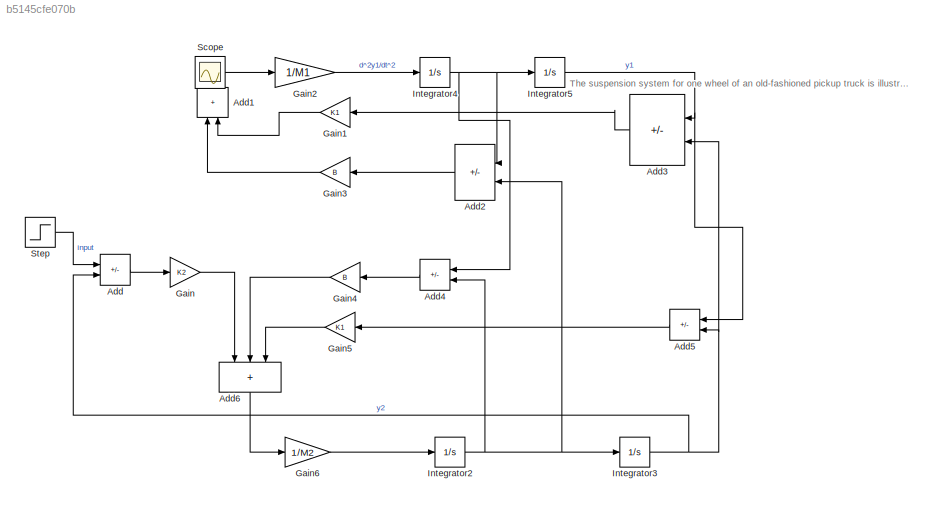
MODEL slx_b5145cfe070b
KIND model
CONFIG AbsTol = auto
CONFIG EnableMultiTasking = off
CONFIG FixedStep = auto
CONFIG MaxStep = auto
CONFIG MinStep = auto
CONFIG RelTol = 1e-3
CONFIG SampleTimeConstraint = Unconstrained
CONFIG Solver = VariableStepAuto
CONFIG SolverName = VariableStepAuto
CONFIG StartTime = 0.0
CONFIG StopTime = 10.0
BLOCK [Sum] Add
  IconShape = rectangular
  Inputs = +-
  Ports = [2, 1]
BLOCK [Sum] Add1
  IconShape = rectangular
  NameLocation = right
  Ports = [2, 1]
BLOCK [Sum] Add2
  IconShape = rectangular
  Inputs = -+
  NameLocation = top
  Ports = [2, 1]
BLOCK [Sum] Add3
  IconShape = rectangular
  Inputs = -+
  NameLocation = top
  Ports = [2, 1]
BLOCK [Sum] Add4
  IconShape = rectangular
  Inputs = +-
  NameLocation = top
  Ports = [2, 1]
BLOCK [Sum] Add5
  IconShape = rectangular
  Inputs = +-
  NameLocation = top
  Ports = [2, 1]
BLOCK [Sum] Add6
  IconShape = rectangular
  Inputs = +++
  NameLocation = left
  Ports = [3, 1]
BLOCK [Gain] Gain
  Gain = K2
BLOCK [Gain] Gain1
  Gain = K1
  NameLocation = top
BLOCK [Gain] Gain2
  Gain = 1/M1
BLOCK [Gain] Gain3
  Gain = B
  NameLocation = top
BLOCK [Gain] Gain4
  Gain = B
  NameLocation = top
BLOCK [Gain] Gain5
  Gain = K1
  NameLocation = top
BLOCK [Gain] Gain6
  Gain = 1/M2
BLOCK [Integrator] Integrator2
  Ports = [1, 1]
BLOCK [Integrator] Integrator3
  Ports = [1, 1]
BLOCK [Integrator] Integrator4
  Ports = [1, 1]
BLOCK [Integrator] Integrator5
  Ports = [1, 1]
BLOCK [Scope] Scope
  Floating = off
  IOType = viewer
  NumInputPorts = 1
  Ports = []
  ScopeSpecificationString = Simulink.scopes.TimeScopeBlockCfg('CurrentConfiguration', extmgr.ConfigurationSet(extmgr.Configuration('Core','General UI',true),extmgr.Configuration('Core','Source UI',true),extmgr.Configuration('Sources','WiredSimulink',true),extmgr.Configuration('Visuals','Time Domain',true,'SerializedDisplays',{struct('MinYLimReal','-0.125','MaxYLimReal','1.125','YLabelReal','','MinYLimMag','0.00000','MaxYLimM...<+3432ch>
BLOCK [Step] Step
  SampleTime = 0
ANNOTATION (root): The suspension system for one wheel of an old-fashioned pickup truck is illustrated in figure 2. The mass of the vehicle is m1 and the mass of the wheel is m2. The suspension spring has a spring constant k1 and the tire had the spring constant k2. The damping constant of the shock absorber is b. Obtain the mathematical model which represent the vehicle response to bump in the road and simulate it ...<+90ch>
LINE Add1:1 -> Gain2:1
LINE Add2:1 -> Gain3:1
LINE Add3:1 -> Gain1:1
LINE Add4:1 -> Gain4:1
LINE Add5:1 -> Gain5:1
LINE Add6:1 -> Gain6:1
LINE Add:1 -> Gain:1
LINE Gain1:1 -> Add1:2
LINE Gain2:1 -> Integrator4:1
LINE Gain3:1 -> Add1:1
LINE Gain4:1 -> Add6:2
LINE Gain5:1 -> Add6:3
LINE Gain6:1 -> Integrator2:1
LINE Gain:1 -> Add6:1
NET Integrator2:1 -> Add2:2, Add4:2, Integrator3:1
NET Integrator3:1 -> Add3:2, Add5:2, Add:2
NET Integrator4:1 -> Add2:1, Add4:1, Integrator5:1
NET Integrator5:1 -> Add3:1, Add5:1
LINE Step:1 -> Add:1
note: NET lines group one-source signal fan-out (src -> all destinations, sorted); 1:1 wires keep LINE
